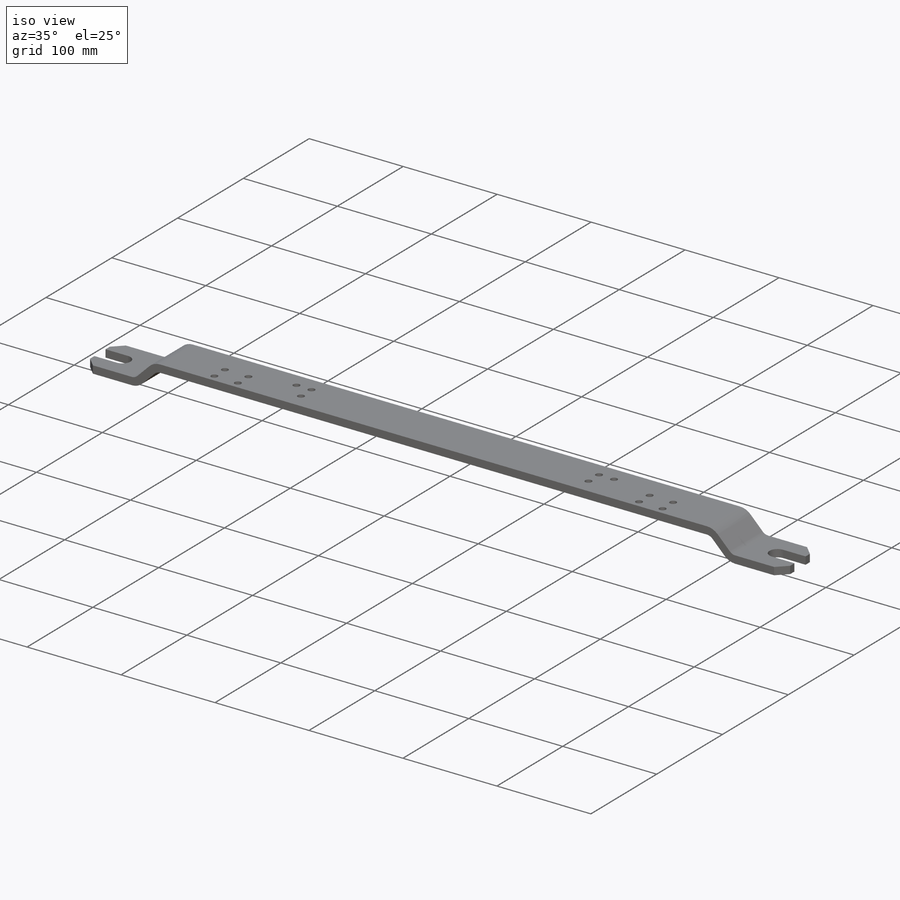
[diagram: iso view]
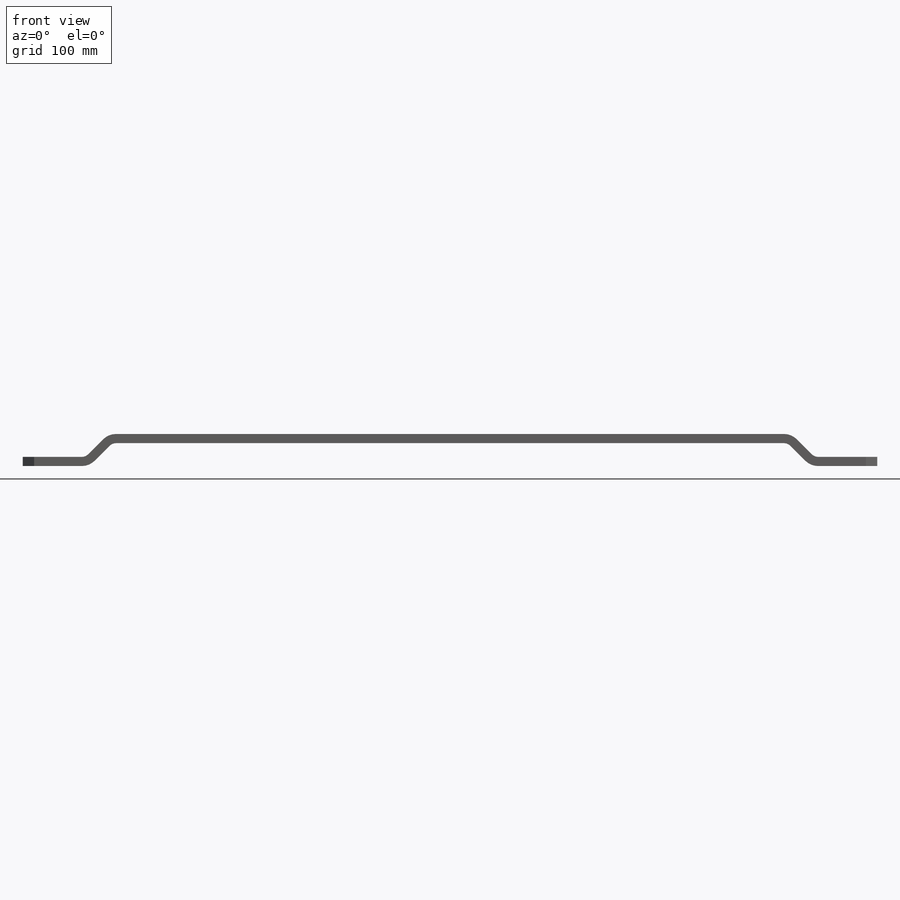
[diagram: front view]
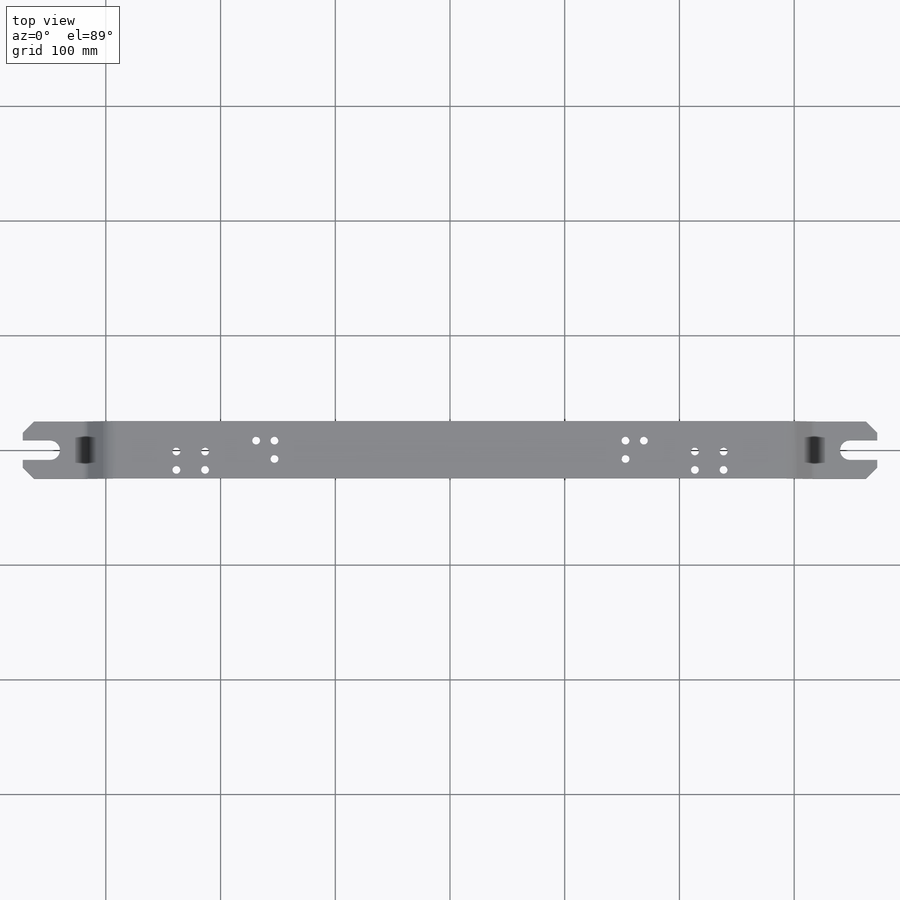
[diagram: top view]
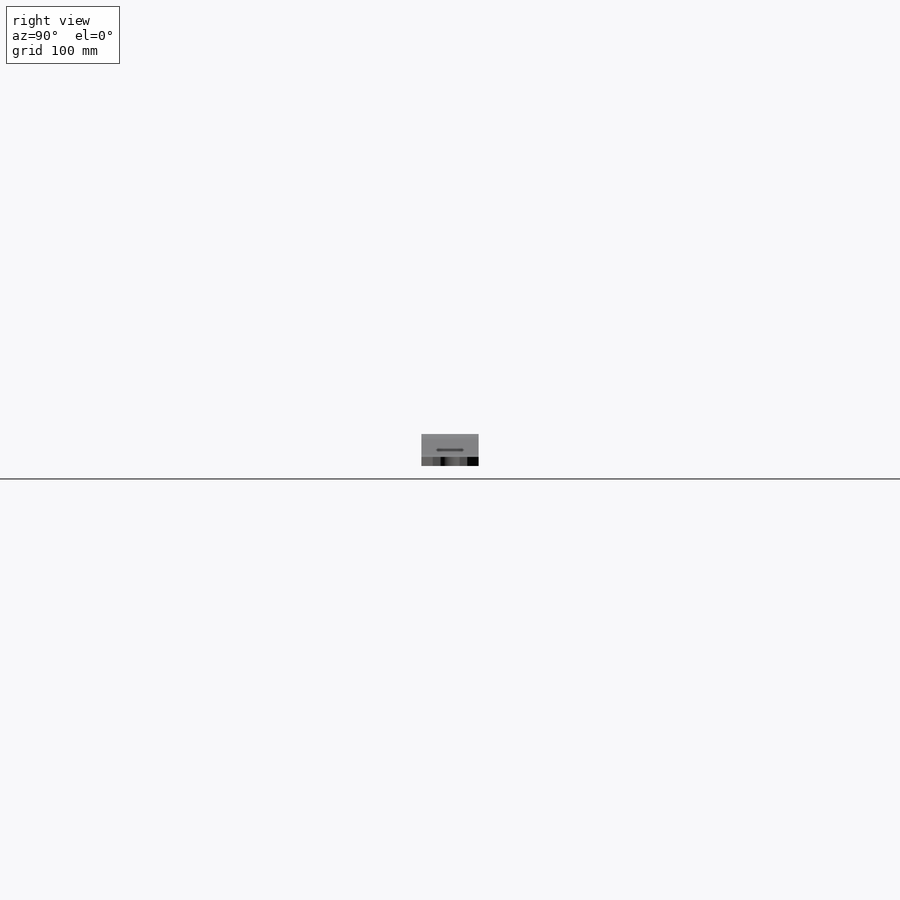
[diagram: right view]
SOLIDWORKS PART (.sldprt)
format: sldprt  version: not decoded by parser v0  size: 635,904 bytes
history: native  units: mm
features: mirror x14, sketch x7, sheet_metal_op x5, thread x4, plane x3, material x1, chamfer x1, cut_extrude x1, hole x1 + 6 further entries (+9 scaffold rows collapsed)
feature tree (52):
  scaffold x9  (default folders/planes/origin — collapsed)
  material  " 09Г2С ГОСТ 4543-71"
  plane  "Спереди"
  plane  "Сверху"
  plane  "Слева"
  "Начало координат"
  "PTricksFreeParameters"
  "PTricksEqu"
  "PTricksFreeParameters"
  sketch  "Эскиз1"  dims[c1.D1=~38.107656mm c2.D1=50.0mm c2.D2=745.0mm]
  sheet_metal_op  "Листовой металл1"  Толщина=8mm
  sheet_metal_op  "Базовая кромка1"
  sketch  "Эскиз3"  dims[c1.D1=51.5mm c2.D1=8.0mm c2.D4=45.0deg c2.D5=1.0 c2.D8=4.0mm c2.D9=4.0mm]
  sheet_metal_op  "Изгиб3"
  chamfer  "Фаска1"  Distance=10mm Angle=45deg
  sketch  "Эскиз4"  dims[c1.D1=~24.620605mm c1.D2=17.0mm c2.D1=697.0mm c2.D3=6.5mm]
  cut_extrude  "Вытянуть1"  [1 undecoded]
  mirror  "Зеркальное отражение1"
  sheet_metal_op  "Зеркальное отражение сгиба1"
  sheet_metal_op  "Зеркальное отражение сгиба2"
  sketch  "Эскиз5"  dims[D1=16.0mm D2=8.0mm D3=227.5mm D4=134.0mm D5=25.0mm D6=7.5mm D7=16.0mm]
  hole  "Отверстие обработанное метчиком M8x1.251"  [1 undecoded]
  sketch  "Эскиз7"  dims[D1=17.0mm]
  sketch  "Эскиз6"  dims[hole-wizard template sketch: 54 standard entries collapsed; hole parameters kept: c17.Диаметр проходного сверла=6.8mm c17.Глубина проходного сверла=8.0mm c17.Диаметр передней зенковки=8.5mm c17.D4=~3.666174mm c17.Угол передней зенковки=90.0deg]
  thread  "Отверстие резьбы1"  Diameter=8mm  [1 undecoded]
  mirror  "Отверстие резьбы2"
  mirror  "Отверстие резьбы3"
  mirror  "Отверстие резьбы4"
  mirror  "Отверстие резьбы5"
  mirror  "Отверстие резьбы6"
  mirror  "Отверстие резьбы7"
  mirror  "Отверстие резьбы8"
  mirror  "Отверстие резьбы9"
  mirror  "Отверстие резьбы10"
  mirror  "Отверстие резьбы11"
  mirror  "Отверстие резьбы12"
  mirror  "Отверстие резьбы13"
  mirror  "Отверстие резьбы14"
  "Развертка1"
  sketch  "Сгиб-Линии1"
  "Преобразование эскиза1"
  thread  "Плоское состояние-<Изгиб3>1"  [2 undecoded]
  thread  "Плоское состояние-<Зеркальное отражение сгиба1>1"  [2 undecoded]
  thread  "Плоское состояние-<Зеркальное отражение сгиба2>1"  [2 undecoded]
decode coverage: 9 of 33 modeling features carry decoded parameters; 6 rows unclassified (native names shown)
note: ~ marks probable driven/reference dimensions
note: 9 parameter values undecoded
summary: no parameter record found for 5 features
note: suppression state not decoded; provenance and decode notes live in map.json
